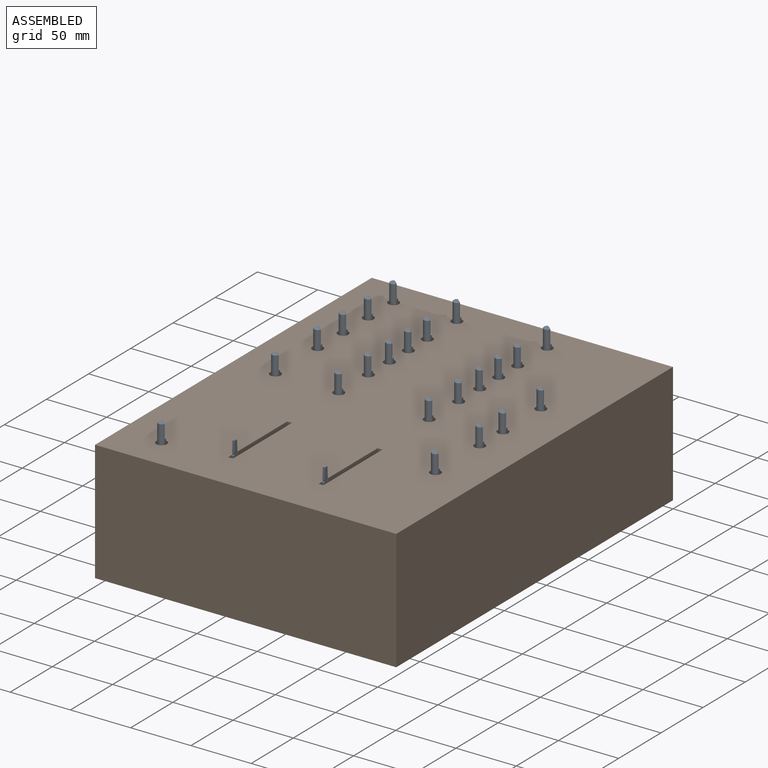
[diagram: assembled view]
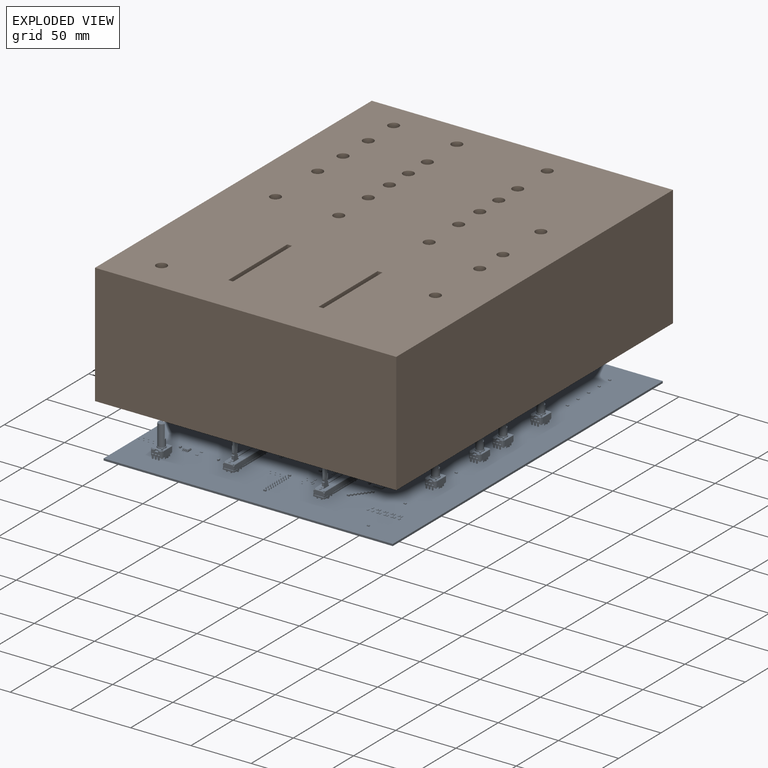
[diagram: exploded view]
GUIDED TOUR — FREECAD ASSEMBLY "assembly"

This assembly has 2 components, labeled P0..P1 below (a component is one placed body or linked part; the same part can appear more than once), held together by 0 modeled joints plus 1 derived contact edge. A joint is a constraint between two components; its type names the relative motion it leaves free:
  CONTACT — a derived adjacency edge — the two components touch in the source model (clearance under 2% of the assembly's diagonal); it is measured from the geometry, not a modeled constraint.
Axis/direction vectors are unit vectors and 'through' points are millimeter coordinates, both in the assembly's world frame.

MATES
  1. CONTACT "contact_0_1": P0 <-> P1, contact direction (0.000, 0.000, 1.000) through (86.03, -222.26, 0.00) mm (derived from contact, not a modeled constraint)

ASSEMBLY ORDER
  1. P0 — the base component [order heuristic]
  2. P1 [order heuristic]
Order-tag legend:
  [order heuristic] — this assembly is geometrically interlocked (no collision-free removal order exists), so components are listed in mate-graph order; insertion feasibility is not verified.

Of the 2 components, 1 carries a construction recipe — the FreeCAD feature program (sketches with constraints, then the solid features that consume them) that regenerates the part from scratch, quoted from this document or from the linked companion document it references; the rest are supplied as boundary geometry only. The tour below walks the components in assembly order: each is shown spotlighted twice — in the assembled view, then in the exploded view, where a leader line traces a displaced component back to its assembled socket (components that stay in place when exploded have no leader line; saturated green if recipe-attached, orange if geometry-only; every other component desaturated gray) — followed by its recipe or geometry summary and the mates that hold it.
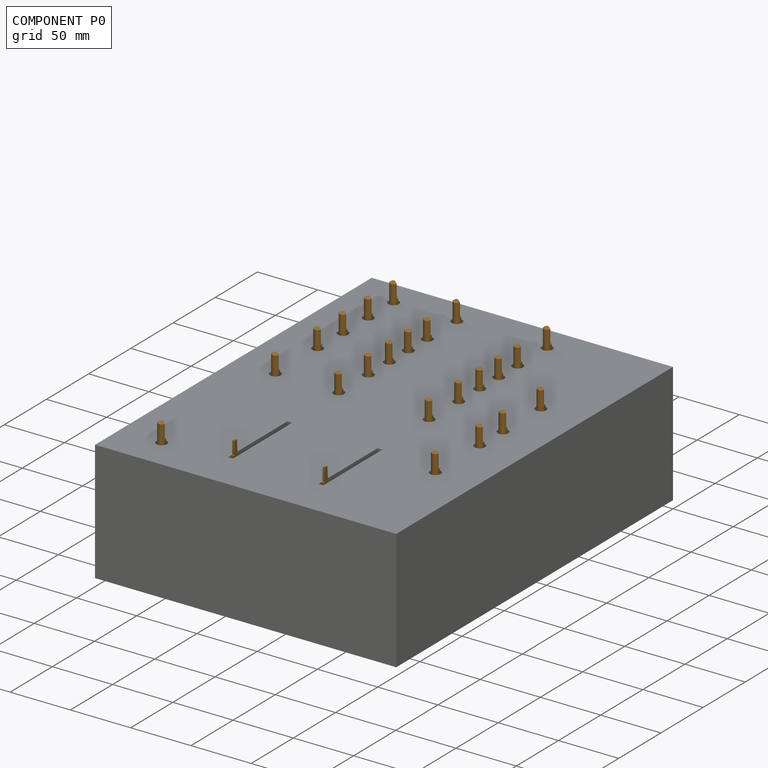
[diagram: component P0 — assembled]
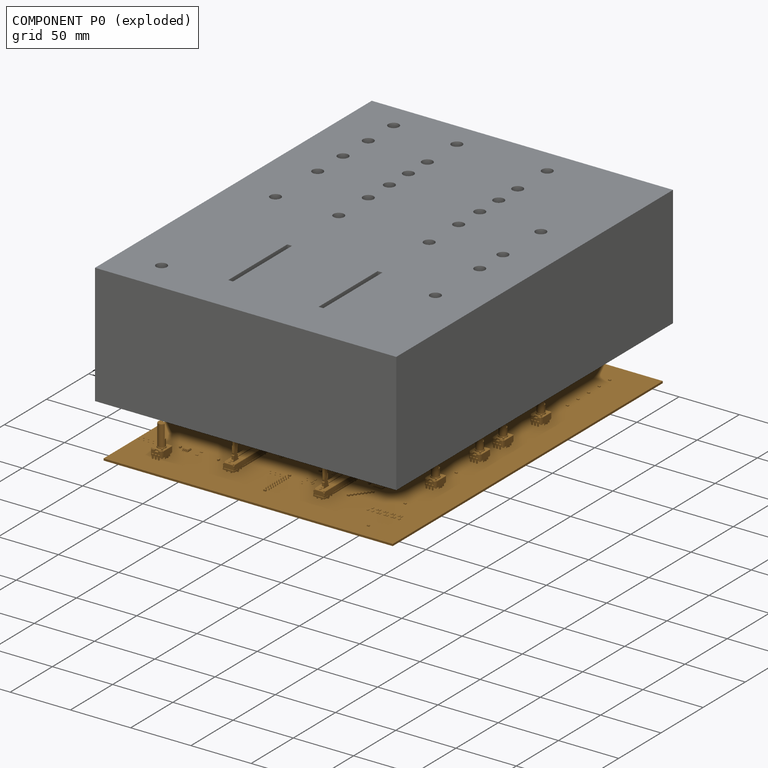
[diagram: component P0 — exploded]
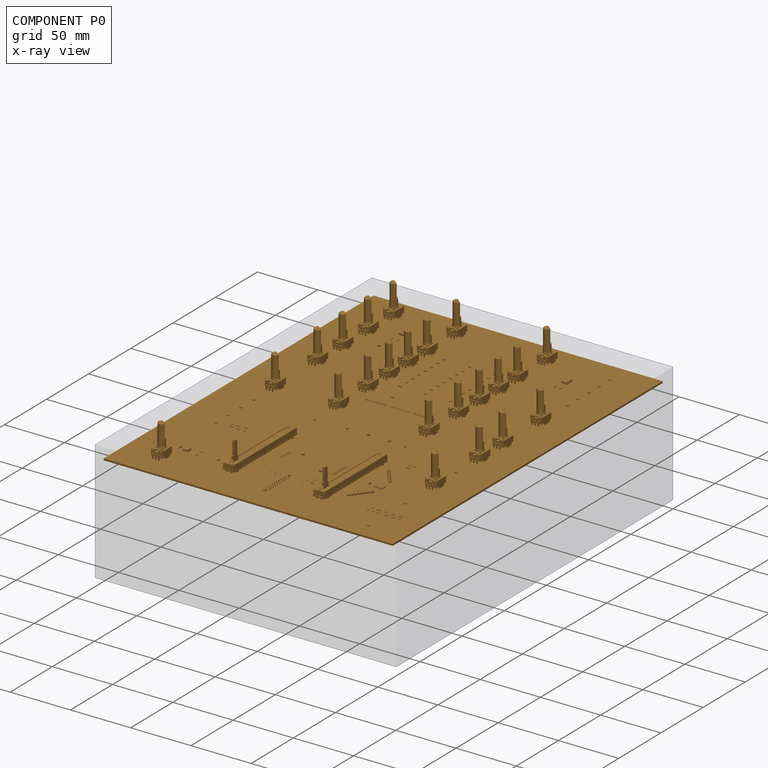
[diagram: component P0 — x-ray view]
COMPONENT P0 — geometry summary ("io_daughterboard-rounded"; no construction recipe available for this part):
  bounding box: 320.0 x 240.0 x 34.1 mm
  tessellated surface: 146,664 triangles
  volume: 154578 mm^3 (6% of its bounding box)
Held by: resting contact with P1 (derived edge).
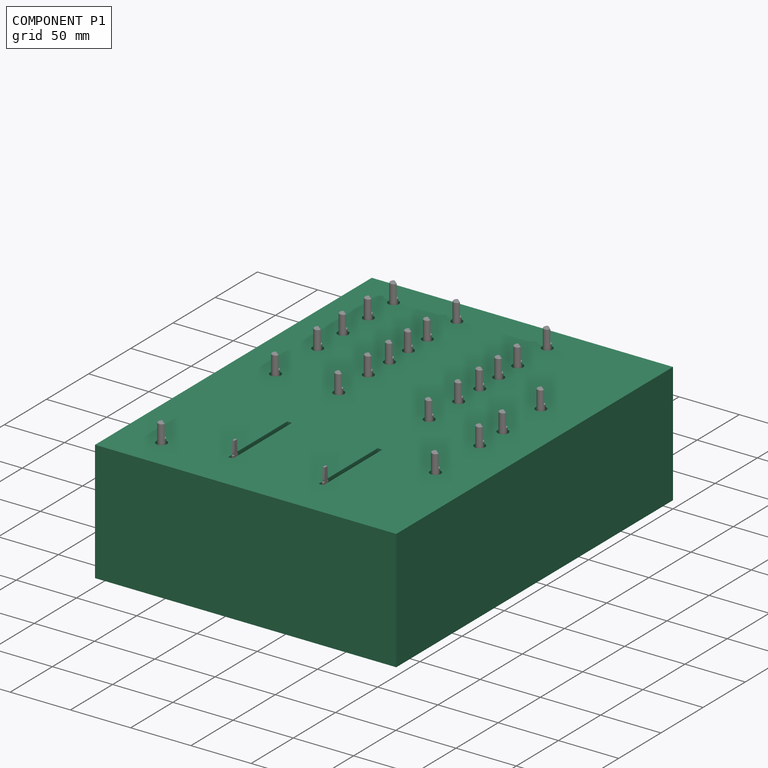
[diagram: component P1 — assembled]
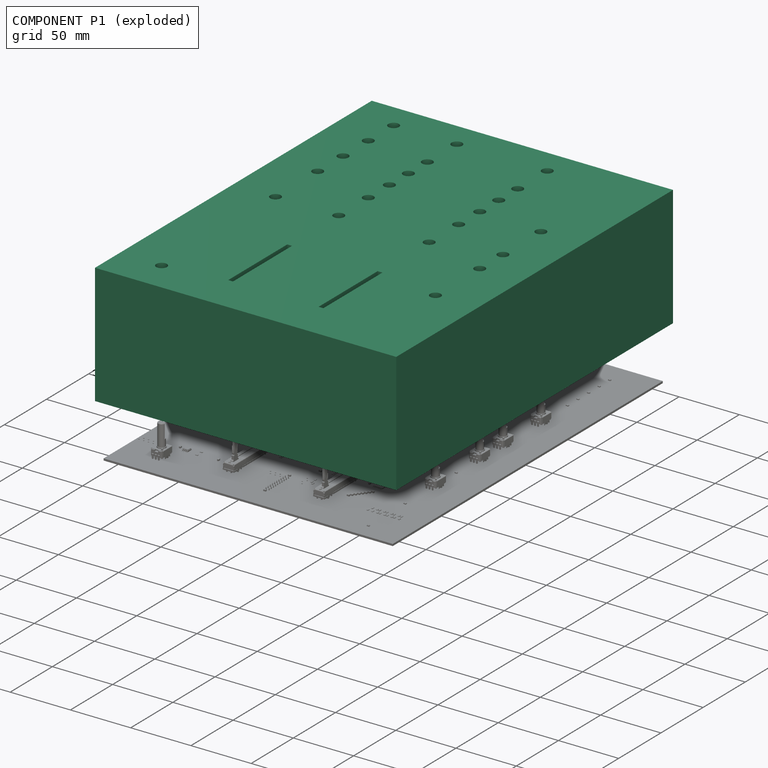
[diagram: component P1 — exploded]
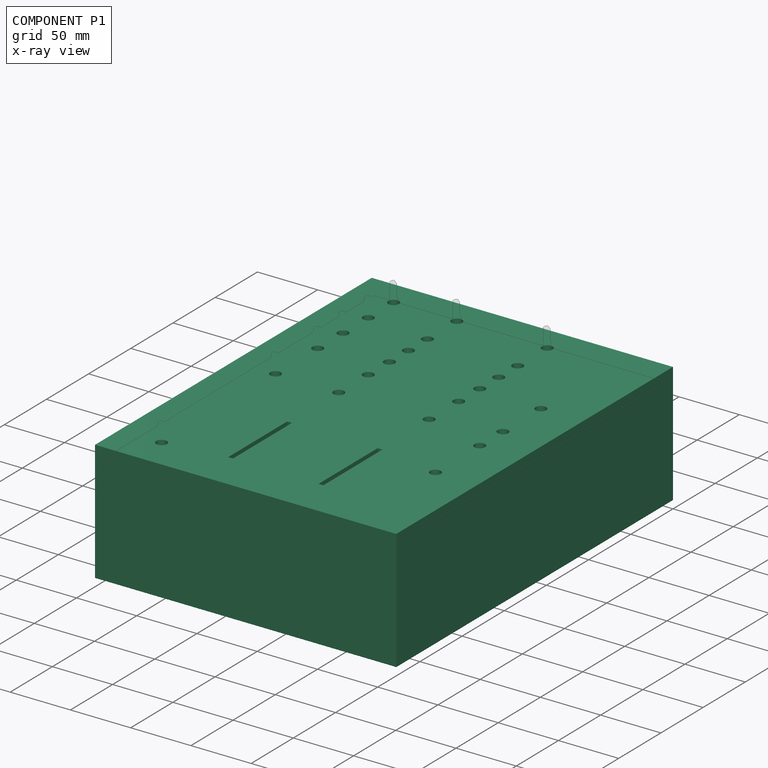
[diagram: component P1 — x-ray view]
COMPONENT P1 — recipe-attached ("Case", modeled in this document).
Held by: resting contact with P0 (derived edge).
Construction recipe (the document's own serialized feature program — sketch geometry with constraints, then the solid features built on it; lengths are millimeters unless a unit is written):

FEATURE [Sketcher::SketchObject] Sketch  label="outdimensions"
  FullyConstrained = true
  MapMode = 5
  Support = -> [XY_Plane011]
  expr: Constraints[10] = Spreadsheet.pcb_length + 2 * (Spreadsheet.wall_clearence + Spreadsheet.wall_clearence)
  expr: Constraints[9] = Spreadsheet.pcb_width + 2 * (Spreadsheet.wall_thickness + Spreadsheet.wall_clearence)
  sketch-geometry (4):
    g0: LineSegment StartX=0 StartY=0 StartZ=0 EndX=250 EndY=0 EndZ=0
    g1: LineSegment StartX=250 StartY=0 StartZ=0 EndX=250 EndY=-328 EndZ=0
    g2: LineSegment StartX=250 StartY=-328 StartZ=0 EndX=0 EndY=-328 EndZ=0
    g3: LineSegment StartX=0 StartY=-328 StartZ=0 EndX=0 EndY=0 EndZ=0
  constraints (11):
    c: Coincident(g0,g1)
    c: Coincident(g1,g2)
    c: Coincident(g2,g3)
    c: Coincident(g3,g0)
    c: Horizontal(g0)
    c: Horizontal(g2)
    c: Vertical(g1)
    c: Vertical(g3)
    c: Coincident(g0,g-1)
    c: DistanceX(g0,g0) = 250
    c: DistanceY(g1,g1) = 328
FEATURE [PartDesign::Pad] Pad  label="frontplate_box"
  Direction = (0,0,1)
  Length = 5
  Length2 = 100
  Profile = -> Sketch
  ReferenceAxis = -> Sketch [N_Axis]
  Type = 0
FEATURE [Sketcher::SketchObject] Sketch001  label="Frontplate holes"
  FullyConstrained = true
  MapMode = 5
  Placement = pos=(0,0,5) rot=(0,0,1;0rad)
  Support = -> [Pad]
  expr: Constraints[0] = Spreadsheet.pot_stick_diameter + Spreadsheet.pot_stick_clearance
  expr: Constraints[10] = Spreadsheet.hi_row_offset
  expr: Constraints[12] = Spreadsheet.hi_mid_row_offset
  expr: Constraints[14] = Spreadsheet.spare3_row_offset
  expr: Constraints[15] = Spreadsheet.lo_mid_row_offset
  expr: Constraints[17] = Spreadsheet.spare5_row_offset
  expr: Constraints[18] = Spreadsheet.spare4_row_offset
  expr: Constraints[19] = Spreadsheet.low_row_offset
  expr: Constraints[1] = Spreadsheet.second_col_offset + Spreadsheet.wall_thickness + Spreadsheet.wall_clearence
  expr: Constraints[21] = Spreadsheet.fourth_col_offset
  expr: Constraints[22] = Spreadsheet.col_fx_row_offset
  expr: Constraints[25] = Spreadsheet.sfx_param_1_row_offset
  expr: Constraints[26] = Spreadsheet.sfx_param_2_row_offset
  expr: Constraints[27] = Spreadsheet.sfx_wet_row_offset
  expr: Constraints[28] = Spreadsheet.cue_mix_row_offset
  expr: Constraints[2] = Spreadsheet.third_col_offset + Spreadsheet.wall_thickness + Spreadsheet.wall_clearence
  expr: Constraints[5] = Spreadsheet.wall_thickness + Spreadsheet.wall_clearence
  expr: Constraints[6] = Spreadsheet.wall_thickness + Spreadsheet.wall_clearence
  expr: Constraints[7] = Spreadsheet.first_col_offset
  expr: Constraints[86] = Spreadsheet.fader_hole_width
  expr: Constraints[87] = Spreadsheet.fader_hole_length
  expr: Constraints[89] = Spreadsheet.fader_hole_row_offset
  expr: Constraints[8] = Spreadsheet.gain_row_offset
  expr: Constraints[9] = Spreadsheet.spare2_row_offset
  sketch-geometry (33):
    g0: Circle CenterX=35 CenterY=-24.05 CenterZ=0 NormalX=0 NormalY=0 NormalZ=1 AngleXU=0 Radius=4.4
    g1: Circle CenterX=87.5 CenterY=-24.05 CenterZ=0 NormalX=0 NormalY=0 NormalZ=1 AngleXU=0 Radius=4.4
    g2: Circle CenterX=162.5 CenterY=-24.05 CenterZ=0 NormalX=0 NormalY=0 NormalZ=1 AngleXU=0 Radius=4.4
    g3: GeomPoint X=5 Y=-5 Z=0
    g4: Circle CenterX=35 CenterY=-54.05 CenterZ=0 NormalX=0 NormalY=0 NormalZ=1 AngleXU=0 Radius=4.4
    g5: Circle CenterX=87.5 CenterY=-59.05 CenterZ=0 NormalX=0 NormalY=0 NormalZ=1 AngleXU=0 Radius=4.4
    g6: Circle CenterX=162.5 CenterY=-59.05 CenterZ=0 NormalX=0 NormalY=0 NormalZ=1 AngleXU=0 Radius=4.4
    g7: Circle CenterX=87.5 CenterY=-81.55 CenterZ=0 NormalX=0 NormalY=0 NormalZ=1 AngleXU=0 Radius=4.4
    g8: Circle CenterX=162.5 CenterY=-81.55 CenterZ=0 NormalX=0 NormalY=0 NormalZ=1 AngleXU=0 Radius=4.4
    g9: Circle CenterX=35 CenterY=-84.05 CenterZ=0 NormalX=0 NormalY=0 NormalZ=1 AngleXU=0 Radius=4.4
    g10: Circle CenterX=87.5 CenterY=-104.05 CenterZ=0 NormalX=0 NormalY=0 NormalZ=1 AngleXU=0 Radius=4.4
    g11: Circle CenterX=162.5 CenterY=-104.05 CenterZ=0 NormalX=0 NormalY=0 NormalZ=1 AngleXU=0 Radius=4.4
    g12: Circle CenterX=87.5 CenterY=-129.05 CenterZ=0 NormalX=0 NormalY=0 NormalZ=1 AngleXU=0 Radius=4.4
    g13: Circle CenterX=162.5 CenterY=-129.05 CenterZ=0 NormalX=0 NormalY=0 NormalZ=1 AngleXU=0 Radius=4.4
    g14: Circle CenterX=215 CenterY=-106.55 CenterZ=0 NormalX=0 NormalY=0 NormalZ=1 AngleXU=0 Radius=4.4
    g15: Circle CenterX=35 CenterY=-114.05 CenterZ=0 NormalX=0 NormalY=0 NormalZ=1 AngleXU=0 Radius=4.4
    g16: Circle CenterX=35 CenterY=-164.05 CenterZ=0 NormalX=0 NormalY=0 NormalZ=1 AngleXU=0 Radius=4.4
    g17: Circle CenterX=87.5 CenterY=-164.05 CenterZ=0 NormalX=0 NormalY=0 NormalZ=1 AngleXU=0 Radius=4.4
    g18: Circle CenterX=162.5 CenterY=-164.05 CenterZ=0 NormalX=0 NormalY=0 NormalZ=1 AngleXU=0 Radius=4.4
    g19: Circle CenterX=215 CenterY=-151.55 CenterZ=0 NormalX=0 NormalY=0 NormalZ=1 AngleXU=0 Radius=4.4
    g20: Circle CenterX=215 CenterY=-179.057 CenterZ=0 NormalX=0 NormalY=0 NormalZ=1 AngleXU=0 Radius=4.4
    g21: Circle CenterX=215 CenterY=-231.55 CenterZ=0 NormalX=0 NormalY=0 NormalZ=1 AngleXU=0 Radius=4.4
    g22: Circle CenterX=35 CenterY=-299.05 CenterZ=0 NormalX=0 NormalY=0 NormalZ=1 AngleXU=0 Radius=4.4
    g23: LineSegment StartX=85.5 StartY=-222.27 StartZ=0 EndX=85.5 EndY=-292.27 EndZ=0
    g24: LineSegment StartX=85.5 StartY=-292.27 StartZ=0 EndX=89.5 EndY=-292.27 EndZ=0
    g25: LineSegment StartX=89.5 StartY=-292.27 StartZ=0 EndX=89.5 EndY=-222.27 EndZ=0
    g26: LineSegment StartX=89.5 StartY=-222.27 StartZ=0 EndX=85.5 EndY=-222.27 EndZ=0
    g27: GeomPoint X=87.5 Y=-257.27 Z=0
    g28: LineSegment StartX=160.5 StartY=-222.27 StartZ=0 EndX=160.5 EndY=-292.27 EndZ=0
    g29: LineSegment StartX=160.5 StartY=-292.27 StartZ=0 EndX=164.5 EndY=-292.27 EndZ=0
    g30: LineSegment StartX=164.5 StartY=-292.27 StartZ=0 EndX=164.5 EndY=-222.27 EndZ=0
    g31: LineSegment StartX=164.5 StartY=-222.27 StartZ=0 EndX=160.5 EndY=-222.27 EndZ=0
    g32: GeomPoint X=162.5 Y=-257.27 Z=0
  constraints (94):
    c: Diameter(g0) = 8.8
    c: DistanceX(g-1,g1) = 87.5
    c: DistanceX(g-1,g2) = 162.5
    c: Horizontal(g2,g1)
    c: Horizontal(g1,g0)
    c: DistanceX(g-1,g3) = 5
    c: DistanceY(g3,g-1) = 5
    c: DistanceX(g3,g0) = 30
    c: DistanceY(g0,g3) = 19.05
    c: DistanceY(g4,g3) = 49.05
    c: DistanceY(g5,g3) = 54.05
    c: Horizontal(g5,g6)
    c: DistanceY(g7,g3) = 76.55
    c: Horizontal(g8,g7)
    c: DistanceY(g9,g3) = 79.05
    c: DistanceY(g10,g3) = 99.05
    c: Horizontal(g11,g10)
    c: DistanceY(g14,g3) = 101.55
    c: DistanceY(g15,g3) = 109.05
    c: DistanceY(g12,g3) = 124.05
    c: Horizontal(g13,g12)
    c: DistanceX(g3,g14) = 210
    c: DistanceY(g16,g3) = 159.05
    c: Horizontal(g17,g16)
    c: Horizontal(g16,g18)
    c: DistanceY(g19,g3) = 146.55
    c: DistanceY(g20,g3) = 174.057
    c: DistanceY(g21,g3) = 226.55
    c: DistanceY(g22,g3) = 294.05
    c: Equal(g0,g1)
    c: Equal(g1,g2)
    c: Equal(g2,g4)
    c: Equal(g4,g5)
    c: Equal(g5,g6)
    c: Equal(g6,g7)
    c: Equal(g7,g8)
    c: Equal(g8,g9)
    c: Equal(g9,g10)
    c: Equal(g10,g11)
    c: Equal(g11,g12)
    c: Equal(g12,g13)
    c: Equal(g13,g14)
    c: Equal(g14,g15)
    c: Equal(g15,g16)
    c: Equal(g16,g17)
    c: Equal(g17,g18)
    c: Equal(g18,g19)
    c: Equal(g19,g20)
    c: Equal(g20,g21)
    c: Equal(g21,g22)
    c: Vertical(g0,g4)
    c: Vertical(g4,g9)
    c: Vertical(g9,g15)
    c: Vertical(g15,g16)
    c: Vertical(g16,g22)
    c: Vertical(g1,g5)
    c: Vertical(g5,g7)
    c: Vertical(g7,g10)
    c: Vertical(g10,g12)
    c: Vertical(g12,g17)
    c: Vertical(g2,g6)
    c: Vertical(g6,g8)
    c: Vertical(g8,g11)
    c: Vertical(g11,g13)
    c: Vertical(g13,g18)
    c: Vertical(g14,g19)
    c: Vertical(g19,g20)
    c: Vertical(g20,g21)
    c: Coincident(g23,g24)
    c: Coincident(g24,g25)
    c: Coincident(g25,g26)
    c: Coincident(g26,g23)
    c: Horizontal(g24)
    c: Horizontal(g26)
    c: Vertical(g23)
    c: Vertical(g25)
    c: Symmetric(g24,g23,g27)
    c: Coincident(g28,g29)
    c: Coincident(g29,g30)
    c: Coincident(g30,g31)
    c: Coincident(g31,g28)
    c: Horizontal(g29)
    c: Horizontal(g31)
    c: Vertical(g28)
    c: Vertical(g30)
    c: Symmetric(g29,g28,g32)
    c: DistanceX(g26,g26) = 4
    c: DistanceY(g23,g23) = 70
    c: Vertical(g27,g17)
    c: DistanceY(g23,g3) = 287.27
    c: Horizontal(g28,g24)
    c: Horizontal(g28,g25)
    c: Equal(g31,g26)
    c: Vertical(g18,g32)
FEATURE [PartDesign::Pocket] Pocket
  BaseFeature = -> Pad
  Direction = (0,0,-1)
  Length = 5
  Length2 = 5
  Profile = -> Sketch001
  ReferenceAxis = -> Sketch001 [N_Axis]
  Type = 0
FEATURE [PartDesign::Body] Body  label="Frontplate"
  Group = -> [Pad,Sketch,Sketch001,Pocket]
  Origin = -> Origin011
  Tip = -> Pocket
FEATURE [Sketcher::SketchObject] Sketch002  label="outerdimensions2"
  FullyConstrained = true
  MapMode = 5
  Support = -> [XY_Plane012]
  expr: Constraints[10] = Spreadsheet.pcb_length + 2 * (Spreadsheet.wall_clearence + Spreadsheet.wall_clearence)
  expr: Constraints[9] = Spreadsheet.pcb_width + 2 * (Spreadsheet.wall_thickness + Spreadsheet.wall_clearence)
  sketch-geometry (4):
    g0: LineSegment StartX=0 StartY=0 StartZ=0 EndX=250 EndY=0 EndZ=0
    g1: LineSegment StartX=250 StartY=0 StartZ=0 EndX=250 EndY=-328 EndZ=0
    g2: LineSegment StartX=250 StartY=-328 StartZ=0 EndX=0 EndY=-328 EndZ=0
    g3: LineSegment StartX=0 StartY=-328 StartZ=0 EndX=0 EndY=0 EndZ=0
  constraints (11):
    c: Coincident(g0,g1)
    c: Coincident(g1,g2)
    c: Coincident(g2,g3)
    c: Coincident(g3,g0)
    c: Horizontal(g0)
    c: Horizontal(g2)
    c: Vertical(g1)
    c: Vertical(g3)
    c: Coincident(g0,g-1)
    c: DistanceX(g0,g0) = 250
    c: DistanceY(g1,g1) = 328
FEATURE [PartDesign::Pad] Pad001
  Direction = (0,0,1)
  Length = 95
  Length2 = 10
  Profile = -> Sketch002
  ReferenceAxis = -> Sketch002 [N_Axis]
  Reversed = true
  Type = 0
FEATURE [Sketcher::SketchObject] Sketch003
  FullyConstrained = true
  MapMode = 5
  Support = -> [Pad001]
  expr: Constraints[10] = Spreadsheet.pcb_width + 2 * Spreadsheet.wall_clearence
  expr: Constraints[11] = Spreadsheet.pcb_length + 2 * Spreadsheet.wall_clearence
  expr: Constraints[8] = Spreadsheet.wall_thickness
  expr: Constraints[9] = Spreadsheet.wall_thickness
  sketch-geometry (4):
    g0: LineSegment StartX=3 StartY=-3 StartZ=0 EndX=247 EndY=-3 EndZ=0
    g1: LineSegment StartX=247 StartY=-3 StartZ=0 EndX=247 EndY=-327 EndZ=0
    g2: LineSegment StartX=247 StartY=-327 StartZ=0 EndX=3 EndY=-327 EndZ=0
    g3: LineSegment StartX=3 StartY=-327 StartZ=0 EndX=3 EndY=-3 EndZ=0
  constraints (12):
    c: Coincident(g0,g1)
    c: Coincident(g1,g2)
    c: Coincident(g2,g3)
    c: Coincident(g3,g0)
    c: Horizontal(g0)
    c: Horizontal(g2)
    c: Vertical(g1)
    c: Vertical(g3)
    c: DistanceY(g0,g-1) = 3
    c: DistanceX(g-1,g0) = 3
    c: DistanceX(g0,g0) = 244
    c: DistanceY(g3,g3) = 324
FEATURE [PartDesign::Pocket] Pocket001
  BaseFeature = -> Pad001
  Direction = (0,0,-1)
  Length = 90
  Length2 = 5
  Profile = -> Sketch003
  ReferenceAxis = -> Sketch003 [N_Axis]
  Type = 0
FEATURE [PartDesign::Body] Body001  label="Box"
  Group = -> [Sketch002,Pad001,Sketch003,Pocket001]
  Origin = -> Origin012
  Tip = -> Pocket001
PROVENANCE & LICENSES
Assembly and component geometry: a FreeCAD (.FCStd) document from a public repository crawl; components, placements and joints were extracted with FreeCAD and each solid tessellated.
Construction recipes: the document's own serialized feature recipes (and, for linked parts, the recipes of companion documents from the same project).
License: gpl-3.0.
Joints: native FreeCAD joints and A2plus constraints are mapped to standard mate types; edges marked 'derived from contact' connect touching components and are measured from the geometry, not modeled.
Verification: 1 of this assembly's 2 components carries a construction recipe (1 from this document itself); the rest are geometry-only. Every component's tessellation passed the extraction mesh gates (mesh-volume checksum against the B-rep where available, bounding-box inflation <= 2%).
Renders: orthographic iso camera (az 35 / el 25); the floor grid conveys scale (grid pitch printed in each image; no ruler). In the exploded view each component is displaced by its stored offset vector: the offsets alone carry the explosion direction (mate normal/axis signs are not orientation cues and do not encode it), and separation distances are assigned per mate-chain, not proportionally to assembly-order depth.
